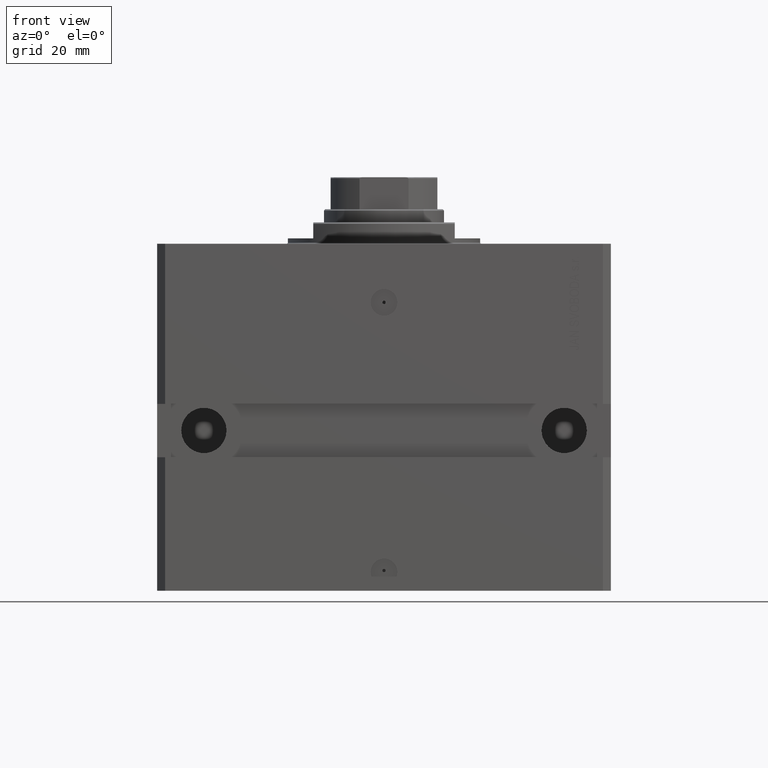
[diagram: clean part render]
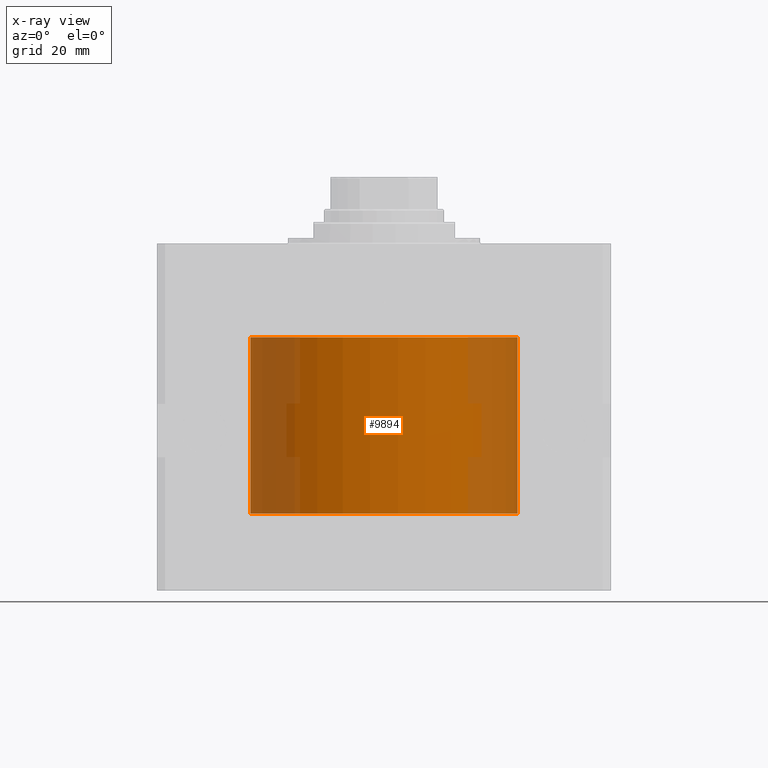
[diagram: x-ray — body ghosted, one internal face saturated and labeled with its STEP entity id]
A machine part, front view, then the same camera in x-ray: the body is ghosted and one INTERNAL B-rep face — a face not visible from any outside direction — is saturated and labeled: STEP entity #9894.
In plain terms, the highlighted cylindrical surface (partial cylindrical patch) has radius 50 mm, axis along (0, 0, 1).
Its self-contained STEP definition (entity closure, byte-faithful):
#144 = EDGE_CURVE ( 'NONE', #4527, #19436, #19004, .T. ) ;
#1677 = DIRECTION ( 'NONE',  ( -0.000000000000000000, -0.000000000000000000, 1.000000000000000000 ) ) ;
#2207 = DIRECTION ( 'NONE',  ( 1.000000000000000000, 0.000000000000000000, 0.000000000000000000 ) ) ;
#3670 = CARTESIAN_POINT ( 'NONE',  ( 50.00000000000000000, 0.000000000000000000, -35.10000000000000142 ) ) ;
#4130 = AXIS2_PLACEMENT_3D ( 'NONE', #35996, #39680, #2207 ) ;
#4527 = VERTEX_POINT ( 'NONE', #8448 ) ;
#5634 = EDGE_CURVE ( 'NONE', #32538, #19436, #20747, .T. ) ;
#5838 = CARTESIAN_POINT ( 'NONE',  ( 0.000000000000000000, 0.000000000000000000, -101.0999999999999943 ) ) ;
#6886 = EDGE_LOOP ( 'NONE', ( #42109, #21305, #32964, #11713 ) ) ;
#8448 = CARTESIAN_POINT ( 'NONE',  ( -50.00000000000000000, 6.123233995736766085E-15, -35.10000000000000142 ) ) ;
#9894 = ADVANCED_FACE ( 'NONE', ( #13439 ), #32048, .F. ) ;
#11713 = ORIENTED_EDGE ( 'NONE', *, *, #5634, .F. ) ;
#13439 = FACE_OUTER_BOUND ( 'NONE', #6886, .T. ) ;
#14128 = CARTESIAN_POINT ( 'NONE',  ( 50.00000000000000000, 0.000000000000000000, -101.0999999999999943 ) ) ;
#16660 = CARTESIAN_POINT ( 'NONE',  ( -50.00000000000000000, 6.123233995736766085E-15, -101.0999999999999943 ) ) ;
#18445 = CIRCLE ( 'NONE', #27037, 50.00000000000000000 ) ;
#19004 = CIRCLE ( 'NONE', #4130, 50.00000000000000000 ) ;
#19436 = VERTEX_POINT ( 'NONE', #3670 ) ;
#19899 = EDGE_CURVE ( 'NONE', #27858, #4527, #46562, .T. ) ;
#20124 = DIRECTION ( 'NONE',  ( -0.000000000000000000, -0.000000000000000000, 1.000000000000000000 ) ) ;
#20747 = LINE ( 'NONE', #27844, #46425 ) ;
#21305 = ORIENTED_EDGE ( 'NONE', *, *, #19899, .T. ) ;
#24662 = DIRECTION ( 'NONE',  ( -0.000000000000000000, -0.000000000000000000, 1.000000000000000000 ) ) ;
#26982 = CARTESIAN_POINT ( 'NONE',  ( -50.00000000000000000, 6.123233995736766085E-15, -101.0999999999999943 ) ) ;
#27037 = AXIS2_PLACEMENT_3D ( 'NONE', #30412, #35047, #34806 ) ;
#27844 = CARTESIAN_POINT ( 'NONE',  ( 50.00000000000000000, 0.000000000000000000, -101.0999999999999943 ) ) ;
#27858 = VERTEX_POINT ( 'NONE', #16660 ) ;
#30412 = CARTESIAN_POINT ( 'NONE',  ( 0.000000000000000000, 0.000000000000000000, -101.0999999999999943 ) ) ;
#32048 = CYLINDRICAL_SURFACE ( 'NONE', #36426, 50.00000000000000000 ) ;
#32538 = VERTEX_POINT ( 'NONE', #14128 ) ;
#32964 = ORIENTED_EDGE ( 'NONE', *, *, #144, .T. ) ;
#34806 = DIRECTION ( 'NONE',  ( 1.000000000000000000, 0.000000000000000000, 0.000000000000000000 ) ) ;
#35047 = DIRECTION ( 'NONE',  ( 0.000000000000000000, 0.000000000000000000, 1.000000000000000000 ) ) ;
#35996 = CARTESIAN_POINT ( 'NONE',  ( 0.000000000000000000, 0.000000000000000000, -35.10000000000000142 ) ) ;
#36426 = AXIS2_PLACEMENT_3D ( 'NONE', #5838, #1677, #43554 ) ;
#39680 = DIRECTION ( 'NONE',  ( 0.000000000000000000, 0.000000000000000000, 1.000000000000000000 ) ) ;
#42089 = VECTOR ( 'NONE', #20124, 1000.000000000000000 ) ;
#42109 = ORIENTED_EDGE ( 'NONE', *, *, #46558, .F. ) ;
#43554 = DIRECTION ( 'NONE',  ( 1.000000000000000000, 0.000000000000000000, 0.000000000000000000 ) ) ;
#46425 = VECTOR ( 'NONE', #24662, 1000.000000000000000 ) ;
#46558 = EDGE_CURVE ( 'NONE', #27858, #32538, #18445, .T. ) ;
#46562 = LINE ( 'NONE', #26982, #42089 ) ;